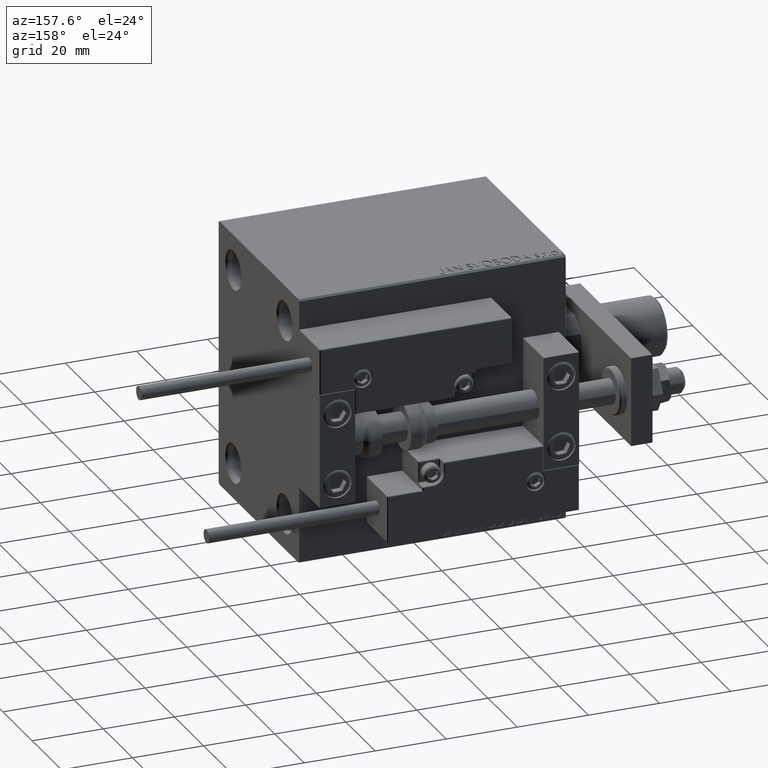
[diagram: clean part render]
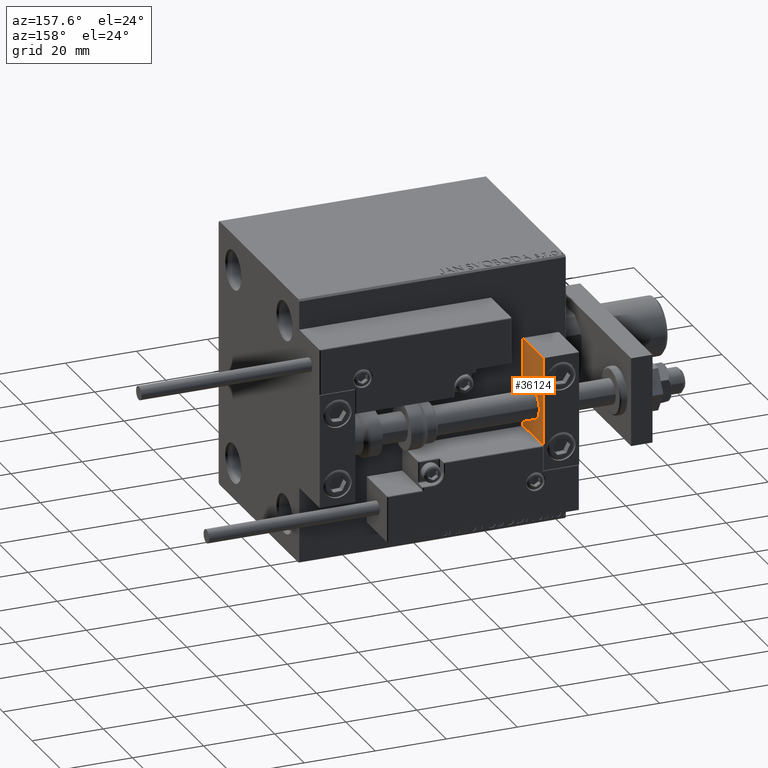
[diagram: same view with one face highlighted and labeled with its STEP entity id]
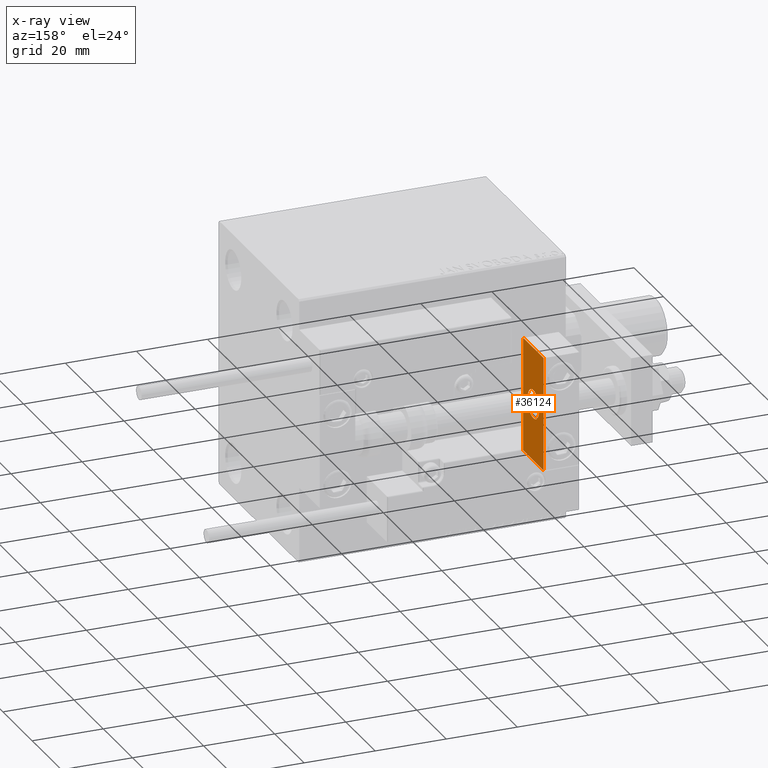
[diagram: x-ray of the same camera — body ghosted, the highlighted face saturated]
A machine part, auxiliary view. The second image highlights one B-rep face of the part: STEP entity #36124.
The next image is the same camera in x-ray: the body ghosted, the highlighted face saturated — about 0% of this face is hidden behind the body in this view.
In plain terms, the highlighted planar face has unit normal (1, 0, 0).
Its self-contained STEP definition (entity closure, byte-faithful):
#90 = CARTESIAN_POINT ( 'NONE',  ( 0.000000000000000000, 0.000000000000000000, 0.000000000000000000 ) ) ;
#610 = CARTESIAN_POINT ( 'NONE',  ( 0.000000000000000000, 0.000000000000000000, 4.000000000000000000 ) ) ;
#1227 = FACE_BOUND ( 'NONE', #50986, .T. ) ;
#2249 = CIRCLE ( 'NONE', #14730, 4.000000000000000000 ) ;
#3334 = ORIENTED_EDGE ( 'NONE', *, *, #51061, .F. ) ;
#4567 = DIRECTION ( 'NONE',  ( 0.000000000000000000, 0.000000000000000000, -1.000000000000000000 ) ) ;
#4899 = DIRECTION ( 'NONE',  ( -1.000000000000000000, 0.000000000000000000, -0.000000000000000000 ) ) ;
#5107 = EDGE_CURVE ( 'NONE', #35538, #8590, #50138, .T. ) ;
#5194 = EDGE_CURVE ( 'NONE', #9698, #44252, #2249, .T. ) ;
#6037 = VECTOR ( 'NONE', #4567, 1000.000000000000000 ) ;
#6945 = EDGE_LOOP ( 'NONE', ( #3334, #20788, #7020, #30886 ) ) ;
#7020 = ORIENTED_EDGE ( 'NONE', *, *, #9841, .T. ) ;
#8590 = VERTEX_POINT ( 'NONE', #34557 ) ;
#8651 = AXIS2_PLACEMENT_3D ( 'NONE', #90, #35536, #15968 ) ;
#9698 = VERTEX_POINT ( 'NONE', #24125 ) ;
#9841 = EDGE_CURVE ( 'NONE', #43488, #35538, #16022, .T. ) ;
#11325 = DIRECTION ( 'NONE',  ( 0.000000000000000000, -1.000000000000000000, 0.000000000000000000 ) ) ;
#12940 = CARTESIAN_POINT ( 'NONE',  ( 0.000000000000000000, 0.000000000000000000, 0.000000000000000000 ) ) ;
#13517 = EDGE_CURVE ( 'NONE', #44252, #9698, #46947, .T. ) ;
#13712 = CARTESIAN_POINT ( 'NONE',  ( 0.000000000000000000, 7.000000000000000000, -16.00000000000000711 ) ) ;
#13903 = VECTOR ( 'NONE', #11325, 1000.000000000000000 ) ;
#14730 = AXIS2_PLACEMENT_3D ( 'NONE', #23324, #15740, #15989 ) ;
#15740 = DIRECTION ( 'NONE',  ( -1.000000000000000000, -0.000000000000000000, -0.000000000000000000 ) ) ;
#15968 = DIRECTION ( 'NONE',  ( 0.000000000000000000, 0.000000000000000000, 1.000000000000000000 ) ) ;
#15989 = DIRECTION ( 'NONE',  ( 0.000000000000000000, 0.000000000000000000, 1.000000000000000000 ) ) ;
#16022 = LINE ( 'NONE', #28021, #6037 ) ;
#16762 = VERTEX_POINT ( 'NONE', #23537 ) ;
#17624 = EDGE_CURVE ( 'NONE', #43488, #16762, #25428, .T. ) ;
#20788 = ORIENTED_EDGE ( 'NONE', *, *, #17624, .F. ) ;
#23324 = CARTESIAN_POINT ( 'NONE',  ( 0.000000000000000000, 0.000000000000000000, 0.000000000000000000 ) ) ;
#23537 = CARTESIAN_POINT ( 'NONE',  ( 0.000000000000000000, -7.000000000000000000, 15.99999999999999289 ) ) ;
#24125 = CARTESIAN_POINT ( 'NONE',  ( 0.000000000000000000, 4.898587196589412829E-16, -4.000000000000000000 ) ) ;
#24468 = AXIS2_PLACEMENT_3D ( 'NONE', #12940, #4899, #36931 ) ;
#25428 = LINE ( 'NONE', #48857, #37949 ) ;
#25713 = DIRECTION ( 'NONE',  ( 0.000000000000000000, 0.000000000000000000, -1.000000000000000000 ) ) ;
#28021 = CARTESIAN_POINT ( 'NONE',  ( 0.000000000000000000, 7.000000000000000000, 15.99999999999999289 ) ) ;
#28848 = PLANE ( 'NONE',  #24468 ) ;
#30886 = ORIENTED_EDGE ( 'NONE', *, *, #5107, .T. ) ;
#31913 = ORIENTED_EDGE ( 'NONE', *, *, #5194, .F. ) ;
#32486 = DIRECTION ( 'NONE',  ( 0.000000000000000000, -1.000000000000000000, 0.000000000000000000 ) ) ;
#34557 = CARTESIAN_POINT ( 'NONE',  ( 0.000000000000000000, -7.000000000000000000, -16.00000000000000711 ) ) ;
#35536 = DIRECTION ( 'NONE',  ( -1.000000000000000000, -0.000000000000000000, -0.000000000000000000 ) ) ;
#35538 = VERTEX_POINT ( 'NONE', #13712 ) ;
#36124 = ADVANCED_FACE ( 'NONE', ( #1227, #36679 ), #28848, .T. ) ;
#36679 = FACE_OUTER_BOUND ( 'NONE', #6945, .T. ) ;
#36931 = DIRECTION ( 'NONE',  ( -0.000000000000000000, 0.000000000000000000, 1.000000000000000000 ) ) ;
#37949 = VECTOR ( 'NONE', #32486, 1000.000000000000000 ) ;
#39037 = VECTOR ( 'NONE', #25713, 1000.000000000000000 ) ;
#40363 = LINE ( 'NONE', #48189, #39037 ) ;
#43488 = VERTEX_POINT ( 'NONE', #51158 ) ;
#44252 = VERTEX_POINT ( 'NONE', #610 ) ;
#45244 = ORIENTED_EDGE ( 'NONE', *, *, #13517, .F. ) ;
#46947 = CIRCLE ( 'NONE', #8651, 4.000000000000000000 ) ;
#48189 = CARTESIAN_POINT ( 'NONE',  ( 0.000000000000000000, -7.000000000000000000, 15.99999999999999289 ) ) ;
#48857 = CARTESIAN_POINT ( 'NONE',  ( 0.000000000000000000, 7.000000000000000000, 15.99999999999999289 ) ) ;
#50138 = LINE ( 'NONE', #50397, #13903 ) ;
#50397 = CARTESIAN_POINT ( 'NONE',  ( 0.000000000000000000, 7.000000000000000000, -16.00000000000000711 ) ) ;
#50986 = EDGE_LOOP ( 'NONE', ( #45244, #31913 ) ) ;
#51061 = EDGE_CURVE ( 'NONE', #16762, #8590, #40363, .T. ) ;
#51158 = CARTESIAN_POINT ( 'NONE',  ( 0.000000000000000000, 7.000000000000000000, 15.99999999999999289 ) ) ;